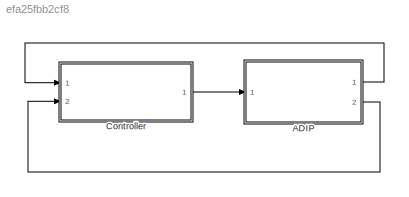
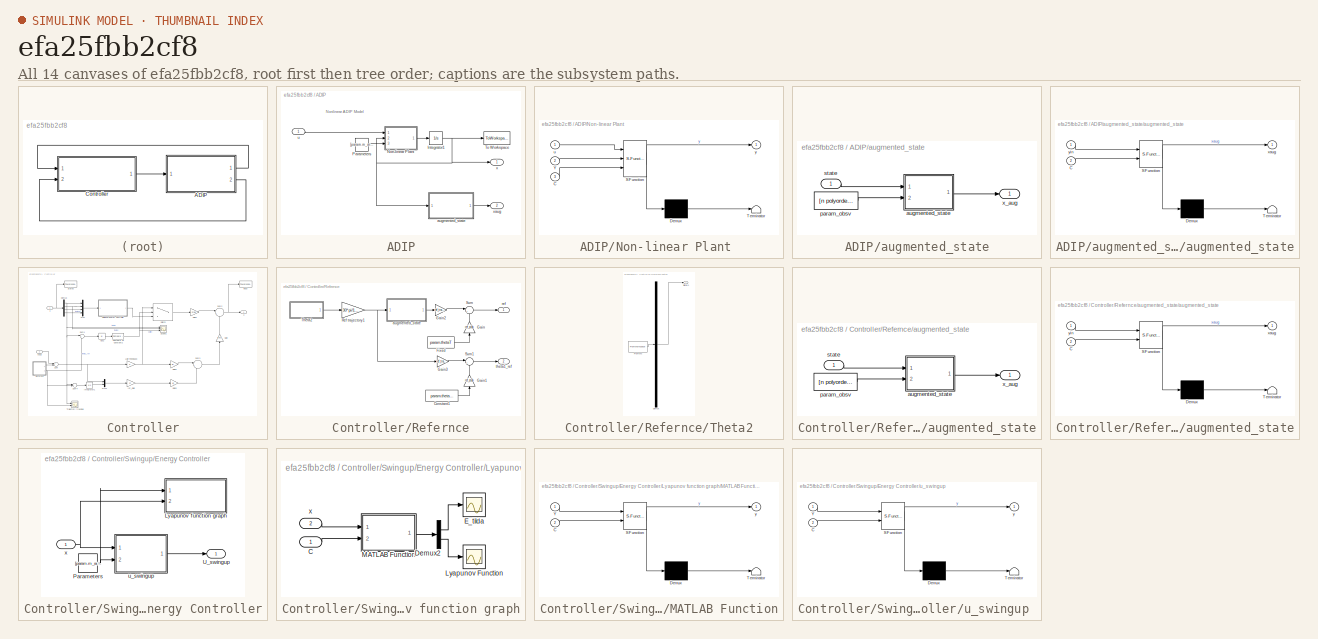
[diagram: thumbnail index - all 14 canvases of the model, root first then tree order]
MODEL slx_efa25fbb2cf8
KIND model
CONFIG AbsTol = auto
CONFIG EnableMultiTasking = off
CONFIG FixedStep = 0.005
CONFIG MaxStep = 0.2
CONFIG MinStep = auto
CONFIG RelTol = 1e-3
CONFIG SampleTimeConstraint = Unconstrained
CONFIG Solver = ode4
CONFIG SolverName = ode4
CONFIG StartTime = 0.0
CONFIG StopTime = 25
BLOCK [SubSystem] ADIP
  Ports = [1, 2]
  RequestExecContextInheritance = off
BLOCK [Integrator] ADIP/Integrator1
  InitialCondition = param.theta0
  Ports = [1, 1]
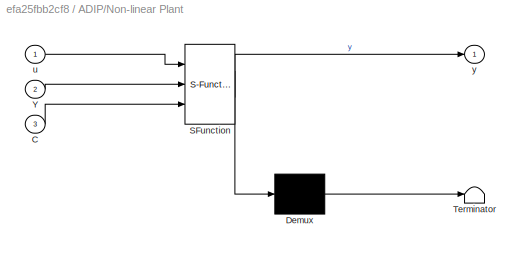
BLOCK [SubSystem] ADIP/Non-linear Plant 
  ErrorFcn = Stateflow.Translate.translate
  PermitHierarchicalResolution = ExplicitOnly
  Ports = [3, 1]
  RequestExecContextInheritance = off
  SFBlockType = MATLAB Function
  TreatAsAtomicUnit = on
BLOCK [Demux] ADIP/Non-linear Plant / Demux 
  Outputs = 1
  Ports = [1, 1]
BLOCK [S-Function] ADIP/Non-linear Plant / SFunction 
  EnableBusSupport = on
  FunctionName = sf_sfun
  PortCounts = [3 2]
  Ports = [3, 2]
  SFcnIsStateOwnerBlock = off
  SFunctionDeploymentMode = off
  Tag = Stateflow S-Function DataDriven_Sim 2
BLOCK [Terminator] ADIP/Non-linear Plant / Terminator 
BLOCK [Inport] ADIP/Non-linear Plant /C
  IconDisplay = Port number
  Port = 3
BLOCK [Inport] ADIP/Non-linear Plant /Y
  IconDisplay = Port number
  Port = 2
BLOCK [Inport] ADIP/Non-linear Plant /u
  IconDisplay = Port number
BLOCK [Outport] ADIP/Non-linear Plant /y
  IconDisplay = Port number
BLOCK [Constant] ADIP/Parameters
  Value = [param.m_arm,param.m_pend,param.m_hinge,param.l_pivot,param.l_pend,param.g,param.Jarm,param.Jpend,param.Jl,param.Jhinge, param.C_arm,param.C_pend]
BLOCK [ToWorkspace] ADIP/To Workspace
  FixptAsFi = on
  MaxDataPoints = inf
  Ports = [1]
  SampleTime = -1
  VariableName = data
BLOCK [SubSystem] ADIP/augmented_state
  Ports = [1, 1]
  RequestExecContextInheritance = off
BLOCK [SubSystem] ADIP/augmented_state/augmented_state
  ErrorFcn = Stateflow.Translate.translate
  PermitHierarchicalResolution = ExplicitOnly
  Ports = [2, 1]
  RequestExecContextInheritance = off
  SFBlockType = MATLAB Function
  TreatAsAtomicUnit = on
BLOCK [Demux] ADIP/augmented_state/augmented_state/ Demux 
  Outputs = 1
  Ports = [1, 1]
BLOCK [S-Function] ADIP/augmented_state/augmented_state/ SFunction 
  EnableBusSupport = on
  FunctionName = sf_sfun
  PortCounts = [2 2]
  Ports = [2, 2]
  SFcnIsStateOwnerBlock = off
  SFunctionDeploymentMode = off
  Tag = Stateflow S-Function DataDriven_Sim 4
BLOCK [Terminator] ADIP/augmented_state/augmented_state/ Terminator 
BLOCK [Inport] ADIP/augmented_state/augmented_state/C
  IconDisplay = Port number
  Port = 2
BLOCK [Outport] ADIP/augmented_state/augmented_state/xaug
  IconDisplay = Port number
BLOCK [Inport] ADIP/augmented_state/augmented_state/yin
  IconDisplay = Port number
BLOCK [Constant] ADIP/augmented_state/param_obsv
  Value = [n polyorder usesine polysine nObsv]
BLOCK [Inport] ADIP/augmented_state/state
  IconDisplay = Port number
BLOCK [Outport] ADIP/augmented_state/x_aug
  IconDisplay = Port number
BLOCK [Inport] ADIP/u
  IconDisplay = Port number
BLOCK [Outport] ADIP/x
  IconDisplay = Port number
BLOCK [Outport] ADIP/xaug
  IconDisplay = Port number
  Port = 2
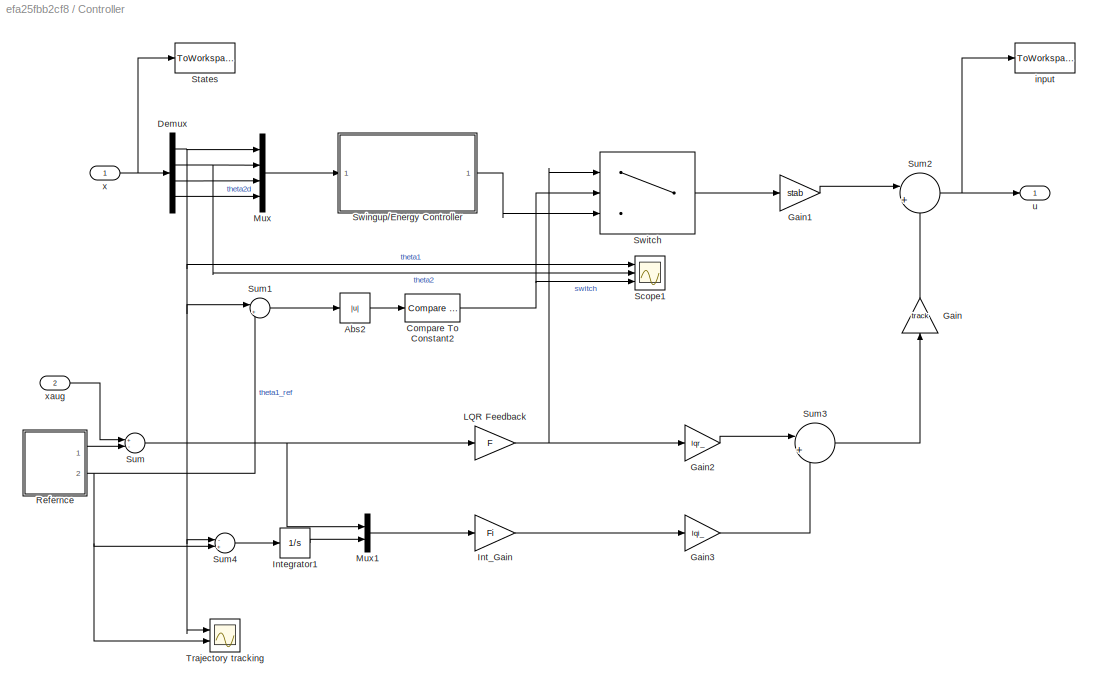
BLOCK [SubSystem] Controller
  Ports = [2, 1]
  RequestExecContextInheritance = off
BLOCK [Abs] Controller/Abs2
  SaturateOnIntegerOverflow = off
BLOCK [Reference] Controller/Compare To Constant2  REF=simulink/Logic and Bit
Operations/Compare
To Constant
  Ports = [1, 1]
  SourceBlock = simulink/Logic and Bit\nOperations/Compare\nTo Constant
  SourceProductBaseCode = SL
  SourceProductName = Simulink
  SourceType = Compare To Constant
BLOCK [Demux] Controller/Demux
  DisplayOption = bar
  Ports = [1, 4]
BLOCK [Gain] Controller/Gain
  Gain = track
  OutDataTypeStr = Inherit: Inherit via internal rule
  ParamDataTypeStr = Inherit: Inherit via internal rule
  SaturateOnIntegerOverflow = off
BLOCK [Gain] Controller/Gain1
  Gain = stab
  OutDataTypeStr = Inherit: Inherit via internal rule
  ParamDataTypeStr = Inherit: Inherit via internal rule
  SaturateOnIntegerOverflow = off
BLOCK [Gain] Controller/Gain2
  Gain = lqr_
  OutDataTypeStr = Inherit: Inherit via internal rule
  ParamDataTypeStr = Inherit: Inherit via internal rule
  SaturateOnIntegerOverflow = off
BLOCK [Gain] Controller/Gain3
  Gain = lqi_
  OutDataTypeStr = Inherit: Inherit via internal rule
  ParamDataTypeStr = Inherit: Inherit via internal rule
  SaturateOnIntegerOverflow = off
BLOCK [Gain] Controller/Int_Gain
  Gain = Fi
  Multiplication = Matrix(K*u)
  OutDataTypeStr = Inherit: Inherit via internal rule
  ParamDataTypeStr = Inherit: Inherit via internal rule
  SaturateOnIntegerOverflow = off
BLOCK [Integrator] Controller/Integrator1
  Ports = [1, 1]
BLOCK [Gain] Controller/LQR Feedback
  Gain = F
  Multiplication = Matrix(K*u)
  OutDataTypeStr = Inherit: Inherit via internal rule
  ParamDataTypeStr = Inherit: Inherit via internal rule
  SaturateOnIntegerOverflow = off
BLOCK [Mux] Controller/Mux
  DisplayOption = bar
  Ports = [4, 1]
BLOCK [Mux] Controller/Mux1
  DisplayOption = bar
  Inputs = 2
  Ports = [2, 1]
BLOCK [SubSystem] Controller/Refernce
  Ports = [0, 2]
  RequestExecContextInheritance = off
BLOCK [Constant] Controller/Refernce/Constant1
  Value = param.thetaT(1)
BLOCK [Constant] Controller/Refernce/Fixed
  Value = param.thetaT
BLOCK [Gain] Controller/Refernce/Gain
  Gain = ref_stab
  OutDataTypeStr = Inherit: Inherit via internal rule
  ParamDataTypeStr = Inherit: Inherit via internal rule
  SaturateOnIntegerOverflow = off
BLOCK [Gain] Controller/Refernce/Gain1
  Gain = ref_stab
  OutDataTypeStr = Inherit: Inherit via internal rule
  ParamDataTypeStr = Inherit: Inherit via internal rule
  SaturateOnIntegerOverflow = off
BLOCK [Gain] Controller/Refernce/Gain2
  Gain = ref_track
  OutDataTypeStr = Inherit: Inherit via internal rule
  ParamDataTypeStr = Inherit: Inherit via internal rule
  SaturateOnIntegerOverflow = off
BLOCK [Gain] Controller/Refernce/Gain3
  Gain = ref_track
  OutDataTypeStr = Inherit: Inherit via internal rule
  ParamDataTypeStr = Inherit: Inherit via internal rule
  SaturateOnIntegerOverflow = off
BLOCK [Gain] Controller/Refernce/Ref trajectory1
  Gain = 30*pi/180
  OutDataTypeStr = Inherit: Inherit via internal rule
  ParamDataTypeStr = Inherit: Inherit via internal rule
  SaturateOnIntegerOverflow = off
BLOCK [Sum] Controller/Refernce/Sum
  IconShape = round
  InputSameDT = off
  Inputs = |++
  OutDataTypeStr = Inherit: Inherit via internal rule
  Ports = [2, 1]
  SaturateOnIntegerOverflow = off
BLOCK [Sum] Controller/Refernce/Sum1
  IconShape = round
  InputSameDT = off
  Inputs = |++
  OutDataTypeStr = Inherit: Inherit via internal rule
  Ports = [2, 1]
  SaturateOnIntegerOverflow = off
BLOCK [SubSystem] Controller/Refernce/Theta2
  ClipboardFcn = sigbuilder_block('clipboard');
  CloseFcn = sigbuilder_block('close');
  ContinueFcn = sigbuilder_block('continue');
  CopyFcn = sigbuilder_block('copy');
  DeleteFcn = sigbuilder_block('delete');
  LoadFcn = sigbuilder_block('load');
  MaskHideContents = on
  ModelCloseFcn = sigbuilder_block('modelClose');
  NameChangeFcn = sigbuilder_block('namechange');
  OpenFcn = sigbuilder_block('open',[5.4 30 1141.2 522.6 ]);
  PauseFcn = sigbuilder_block('pause');
  Ports = [0, 1]
  PreSaveFcn = sigbuilder_block('preSave');
  RequestExecContextInheritance = off
  StartFcn = sigbuilder_block('start');
  StopFcn = sigbuilder_block('stop');
  Tag = STV Subsys
BLOCK [Demux] Controller/Refernce/Theta2/Demux
  Outputs = 1
  Ports = [1, 1]
  Tag = STV Demux
BLOCK [FromWorkspace] Controller/Refernce/Theta2/FromWs
  SampleTime = 0
  Tag = STV FromWs
  VariableName = tuvar
  ZeroCross = on
BLOCK [Outport] Controller/Refernce/Theta2/Signal 1
  IconDisplay = Port number
  Tag = STV Outport
BLOCK [SubSystem] Controller/Refernce/augmented_state
  Ports = [1, 1]
  RequestExecContextInheritance = off
BLOCK [SubSystem] Controller/Refernce/augmented_state/augmented_state
  ErrorFcn = Stateflow.Translate.translate
  PermitHierarchicalResolution = ExplicitOnly
  Ports = [2, 1]
  RequestExecContextInheritance = off
  SFBlockType = MATLAB Function
  TreatAsAtomicUnit = on
BLOCK [Demux] Controller/Refernce/augmented_state/augmented_state/ Demux 
  Outputs = 1
  Ports = [1, 1]
BLOCK [S-Function] Controller/Refernce/augmented_state/augmented_state/ SFunction 
  EnableBusSupport = on
  FunctionName = sf_sfun
  PortCounts = [2 2]
  Ports = [2, 2]
  SFcnIsStateOwnerBlock = off
  SFunctionDeploymentMode = off
  Tag = Stateflow S-Function DataDriven_Sim 5
BLOCK [Terminator] Controller/Refernce/augmented_state/augmented_state/ Terminator 
BLOCK [Inport] Controller/Refernce/augmented_state/augmented_state/C
  IconDisplay = Port number
  Port = 2
BLOCK [Outport] Controller/Refernce/augmented_state/augmented_state/xaug
  IconDisplay = Port number
BLOCK [Inport] Controller/Refernce/augmented_state/augmented_state/yin
  IconDisplay = Port number
BLOCK [Constant] Controller/Refernce/augmented_state/param_obsv
  Value = [n polyorder usesine polysine nObsv]
BLOCK [Inport] Controller/Refernce/augmented_state/state
  IconDisplay = Port number
BLOCK [Outport] Controller/Refernce/augmented_state/x_aug
  IconDisplay = Port number
BLOCK [Outport] Controller/Refernce/ref
  IconDisplay = Port number
BLOCK [Outport] Controller/Refernce/theta1_ref
  IconDisplay = Port number
  Port = 2
BLOCK [Scope] Controller/Scope1
  Floating = off
  NumInputPorts = 3
  Ports = [3]
  ScopeSpecificationString = Simulink.scopes.TimeScopeBlockCfg('CurrentConfiguration', extmgr.ConfigurationSet(extmgr.Configuration('Core','General UI',true,'FigureColor',[1 1 1]),extmgr.Configuration('Core','Source UI',true),extmgr.Configuration('Sources','WiredSimulink',true,'DataLoggingVariableName','ScopeData1'),extmgr.Configuration('Visuals','Time Domain',true,'SerializedDisplays',{struct('MinYLimReal','-0.41257','MaxYLi...<+1939ch>
BLOCK [ToWorkspace] Controller/States
  FixptAsFi = on
  MaxDataPoints = inf
  Ports = [1]
  SampleTime = -1
  VariableName = state
BLOCK [Sum] Controller/Sum
  InputSameDT = off
  Inputs = +-
  OutDataTypeStr = Inherit: Inherit via internal rule
  Ports = [2, 1]
  SaturateOnIntegerOverflow = off
BLOCK [Sum] Controller/Sum1
  IconShape = round
  InputSameDT = off
  Inputs = |+-
  OutDataTypeStr = Inherit: Inherit via internal rule
  Ports = [2, 1]
  SaturateOnIntegerOverflow = off
BLOCK [Sum] Controller/Sum2
  IconShape = round
  InputSameDT = off
  Inputs = |++
  OutDataTypeStr = Inherit: Inherit via internal rule
  Ports = [2, 1]
  SaturateOnIntegerOverflow = off
BLOCK [Sum] Controller/Sum3
  IconShape = round
  InputSameDT = off
  Inputs = |++
  OutDataTypeStr = Inherit: Inherit via internal rule
  Ports = [2, 1]
  SaturateOnIntegerOverflow = off
BLOCK [Sum] Controller/Sum4
  InputSameDT = off
  Inputs = -+
  OutDataTypeStr = Inherit: Inherit via internal rule
  Ports = [2, 1]
  SaturateOnIntegerOverflow = off
BLOCK [SubSystem] Controller/Swingup//Energy Controller
  Ports = [1, 1]
  RequestExecContextInheritance = off
BLOCK [SubSystem] Controller/Swingup//Energy Controller/Lyapunov function graph
  Ports = [2]
  RequestExecContextInheritance = off
BLOCK [Inport] Controller/Swingup//Energy Controller/Lyapunov function graph/C
  IconDisplay = Port number
BLOCK [Demux] Controller/Swingup//Energy Controller/Lyapunov function graph/Demux2
  DisplayOption = bar
  Outputs = 2
  Ports = [1, 2]
BLOCK [Scope] Controller/Swingup//Energy Controller/Lyapunov function graph/E_tilda
  Floating = off
  NumInputPorts = 1
  Ports = [1]
  ScopeSpecificationString = Simulink.scopes.TimeScopeBlockCfg('CurrentConfiguration', extmgr.ConfigurationSet(extmgr.Configuration('Core','General UI',true),extmgr.Configuration('Core','Source UI',true),extmgr.Configuration('Sources','WiredSimulink',true,'DataLoggingVariableName','ScopeData1'),extmgr.Configuration('Visuals','Time Domain',true,'SerializedDisplays',{struct('MinYLimReal','-0.73855','MaxYLimReal','0.08206','YLab...<+1432ch>
BLOCK [Scope] Controller/Swingup//Energy Controller/Lyapunov function graph/Lyapunov Function
  Floating = off
  NumInputPorts = 1
  Ports = [1]
  ScopeSpecificationString = Simulink.scopes.TimeScopeBlockCfg('CurrentConfiguration', extmgr.ConfigurationSet(extmgr.Configuration('Core','General UI',true),extmgr.Configuration('Core','Source UI',true),extmgr.Configuration('Sources','WiredSimulink',true,'DataLoggingVariableName','ScopeData1'),extmgr.Configuration('Visuals','Time Domain',true,'SerializedDisplays',{struct('MinYLimReal','-2.82821','MaxYLimReal','25.45391','YLa...<+1436ch>
BLOCK [SubSystem] Controller/Swingup//Energy Controller/Lyapunov function graph/MATLAB Function
  ErrorFcn = Stateflow.Translate.translate
  PermitHierarchicalResolution = ExplicitOnly
  Ports = [2, 1]
  RequestExecContextInheritance = off
  SFBlockType = MATLAB Function
  TreatAsAtomicUnit = on
BLOCK [Demux] Controller/Swingup//Energy Controller/Lyapunov function graph/MATLAB Function/ Demux 
  Outputs = 1
  Ports = [1, 1]
BLOCK [S-Function] Controller/Swingup//Energy Controller/Lyapunov function graph/MATLAB Function/ SFunction 
  EnableBusSupport = on
  FunctionName = sf_sfun
  PortCounts = [2 2]
  Ports = [2, 2]
  SFcnIsStateOwnerBlock = off
  SFunctionDeploymentMode = off
  Tag = Stateflow S-Function DataDriven_Sim 6
BLOCK [Terminator] Controller/Swingup//Energy Controller/Lyapunov function graph/MATLAB Function/ Terminator 
BLOCK [Inport] Controller/Swingup//Energy Controller/Lyapunov function graph/MATLAB Function/C
  IconDisplay = Port number
  Port = 2
BLOCK [Inport] Controller/Swingup//Energy Controller/Lyapunov function graph/MATLAB Function/Y
  IconDisplay = Port number
BLOCK [Outport] Controller/Swingup//Energy Controller/Lyapunov function graph/MATLAB Function/y
  IconDisplay = Port number
BLOCK [Inport] Controller/Swingup//Energy Controller/Lyapunov function graph/x
  IconDisplay = Port number
  Port = 2
BLOCK [Constant] Controller/Swingup//Energy Controller/Parameters
  Value = [param.m_arm,param.m_pend,param.m_hinge,param.l_pivot,param.l_pend,param.g,param.Jarm,param.Jpend,param.Jl,param.Jhinge, param.C_arm,param.C_pend,param.Kp,param.Kd,param.Ke]
BLOCK [Outport] Controller/Swingup//Energy Controller/U_swingup
  IconDisplay = Port number
BLOCK [SubSystem] Controller/Swingup//Energy Controller/u_swingup 
  ErrorFcn = Stateflow.Translate.translate
  PermitHierarchicalResolution = ExplicitOnly
  Ports = [2, 1]
  RequestExecContextInheritance = off
  SFBlockType = MATLAB Function
  TreatAsAtomicUnit = on
BLOCK [Demux] Controller/Swingup//Energy Controller/u_swingup / Demux 
  Outputs = 1
  Ports = [1, 1]
BLOCK [S-Function] Controller/Swingup//Energy Controller/u_swingup / SFunction 
  EnableBusSupport = on
  FunctionName = sf_sfun
  PortCounts = [2 2]
  Ports = [2, 2]
  SFcnIsStateOwnerBlock = off
  SFunctionDeploymentMode = off
  Tag = Stateflow S-Function DataDriven_Sim 7
BLOCK [Terminator] Controller/Swingup//Energy Controller/u_swingup / Terminator 
BLOCK [Inport] Controller/Swingup//Energy Controller/u_swingup /C
  IconDisplay = Port number
  Port = 2
BLOCK [Inport] Controller/Swingup//Energy Controller/u_swingup /Y
  IconDisplay = Port number
BLOCK [Outport] Controller/Swingup//Energy Controller/u_swingup /y
  IconDisplay = Port number
BLOCK [Inport] Controller/Swingup//Energy Controller/x
  IconDisplay = Port number
BLOCK [Switch] Controller/Switch
  Criteria = u2 > Threshold
  InputSameDT = off
  SaturateOnIntegerOverflow = off
  Threshold = 0.5
BLOCK [Scope] Controller/Trajectory tracking
  Floating = off
  NumInputPorts = 2
  Ports = [2]
  ScopeSpecificationString = Simulink.scopes.TimeScopeBlockCfg('CurrentConfiguration', extmgr.ConfigurationSet(extmgr.Configuration('Core','General UI',true,'FigureColor',[1 1 1]),extmgr.Configuration('Core','Source UI',true),extmgr.Configuration('Sources','WiredSimulink',true,'DataLoggingVariableName','ScopeData2'),extmgr.Configuration('Visuals','Time Domain',true,'SerializedDisplays',{struct('MinYLimReal','-0.6545','MaxYLim...<+1777ch>
BLOCK [ToWorkspace] Controller/input
  FixptAsFi = on
  MaxDataPoints = inf
  Ports = [1]
  SampleTime = -1
  VariableName = input
BLOCK [Outport] Controller/u
  IconDisplay = Port number
BLOCK [Inport] Controller/x
  IconDisplay = Port number
BLOCK [Inport] Controller/xaug
  IconDisplay = Port number
  Port = 2
ANNOTATION ADIP: Nonlinear ADIP Model
NET ADIP/Integrator1:1 -> ADIP/Non-linear Plant :2, ADIP/To Workspace:1, ADIP/augmented_state:1, ADIP/x:1
LINE ADIP/Non-linear Plant :1 -> ADIP/Integrator1:1
LINE ADIP/Parameters:1 -> ADIP/Non-linear Plant :3
LINE ADIP/augmented_state/augmented_state:1 -> ADIP/augmented_state/x_aug:1
LINE ADIP/augmented_state/param_obsv:1 -> ADIP/augmented_state/augmented_state:2
LINE ADIP/augmented_state/state:1 -> ADIP/augmented_state/augmented_state:1
LINE ADIP/augmented_state:1 -> ADIP/xaug:1
LINE ADIP/u:1 -> ADIP/Non-linear Plant :1
LINE ADIP:1 -> Controller:1
LINE ADIP:2 -> Controller:2
LINE Controller/Abs2:1 -> Controller/Compare To Constant2:1
NET Controller/Compare To Constant2:1 -> Controller/Scope1:3, Controller/Switch:2
NET Controller/Demux:1 -> Controller/Mux:1, Controller/Scope1:1, Controller/Sum1:1, Controller/Sum4:1, Controller/Trajectory tracking:1
NET Controller/Demux:2 -> Controller/Mux:2, Controller/Scope1:2
LINE Controller/Demux:3 -> Controller/Mux:3
LINE Controller/Demux:4 -> Controller/Mux:4
LINE Controller/Gain1:1 -> Controller/Sum2:1
LINE Controller/Gain2:1 -> Controller/Sum3:1
LINE Controller/Gain3:1 -> Controller/Sum3:2
LINE Controller/Gain:1 -> Controller/Sum2:2
LINE Controller/Int_Gain:1 -> Controller/Gain3:1
LINE Controller/Integrator1:1 -> Controller/Mux1:2
NET Controller/LQR Feedback:1 -> Controller/Gain2:1, Controller/Switch:1
LINE Controller/Mux1:1 -> Controller/Int_Gain:1
LINE Controller/Mux:1 -> Controller/Swingup//Energy Controller:1
LINE Controller/Refernce/Constant1:1 -> Controller/Refernce/Gain1:1
LINE Controller/Refernce/Fixed:1 -> Controller/Refernce/Gain:1
LINE Controller/Refernce/Gain1:1 -> Controller/Refernce/Sum1:2
LINE Controller/Refernce/Gain2:1 -> Controller/Refernce/Sum:1
LINE Controller/Refernce/Gain3:1 -> Controller/Refernce/Sum1:1
LINE Controller/Refernce/Gain:1 -> Controller/Refernce/Sum:2
NET Controller/Refernce/Ref trajectory1:1 -> Controller/Refernce/Gain3:1, Controller/Refernce/augmented_state:1
LINE Controller/Refernce/Sum1:1 -> Controller/Refernce/theta1_ref:1
LINE Controller/Refernce/Sum:1 -> Controller/Refernce/ref:1
LINE Controller/Refernce/Theta2:1 -> Controller/Refernce/Ref trajectory1:1
LINE Controller/Refernce/augmented_state/augmented_state:1 -> Controller/Refernce/augmented_state/x_aug:1
LINE Controller/Refernce/augmented_state/param_obsv:1 -> Controller/Refernce/augmented_state/augmented_state:2
LINE Controller/Refernce/augmented_state/state:1 -> Controller/Refernce/augmented_state/augmented_state:1
LINE Controller/Refernce/augmented_state:1 -> Controller/Refernce/Gain2:1
LINE Controller/Refernce:1 -> Controller/Sum:2
NET Controller/Refernce:2 -> Controller/Sum1:2, Controller/Sum4:2, Controller/Trajectory tracking:2
LINE Controller/Sum1:1 -> Controller/Abs2:1
NET Controller/Sum2:1 -> Controller/input:1, Controller/u:1
LINE Controller/Sum3:1 -> Controller/Gain:1
LINE Controller/Sum4:1 -> Controller/Integrator1:1
NET Controller/Sum:1 -> Controller/LQR Feedback:1, Controller/Mux1:1
LINE Controller/Swingup//Energy Controller/Lyapunov function graph/C:1 -> Controller/Swingup//Energy Controller/Lyapunov function graph/MATLAB Function:2
LINE Controller/Swingup//Energy Controller/Lyapunov function graph/Demux2:1 -> Controller/Swingup//Energy Controller/Lyapunov function graph/E_tilda:1
LINE Controller/Swingup//Energy Controller/Lyapunov function graph/Demux2:2 -> Controller/Swingup//Energy Controller/Lyapunov function graph/Lyapunov Function:1
LINE Controller/Swingup//Energy Controller/Lyapunov function graph/MATLAB Function:1 -> Controller/Swingup//Energy Controller/Lyapunov function graph/Demux2:1
LINE Controller/Swingup//Energy Controller/Lyapunov function graph/x:1 -> Controller/Swingup//Energy Controller/Lyapunov function graph/MATLAB Function:1
NET Controller/Swingup//Energy Controller/Parameters:1 -> Controller/Swingup//Energy Controller/Lyapunov function graph:1, Controller/Swingup//Energy Controller/u_swingup :2
LINE Controller/Swingup//Energy Controller/u_swingup :1 -> Controller/Swingup//Energy Controller/U_swingup:1
NET Controller/Swingup//Energy Controller/x:1 -> Controller/Swingup//Energy Controller/Lyapunov function graph:2, Controller/Swingup//Energy Controller/u_swingup :1
LINE Controller/Swingup//Energy Controller:1 -> Controller/Switch:3
LINE Controller/Switch:1 -> Controller/Gain1:1
NET Controller/x:1 -> Controller/Demux:1, Controller/States:1
LINE Controller/xaug:1 -> Controller/Sum:1
LINE Controller:1 -> ADIP:1
note: NET lines group one-source signal fan-out (src -> all destinations, sorted); 1:1 wires keep LINE
CHART ADIP/Non-linear 
Plant
 states=1 transitions=1
  STATE_LABEL 'eML_blk_kernel()'
  STATE_LABEL 'SCRIPT:\nfunction y = fcn(u,Y,C)\nm1=C(1); % Mass of arm\nm2=C(2); % Mass of pendulum\nmh = C(3); % Mass of Hinge\nl1  = C(4); % Length of arm\nl2 = C(5); % Length of pendulum\ng_ = C(6);\nJ_arm = C(7);\nJ_pend = C(8);\nJ_motor = C(9);\nJ_sensor = C(10);\nfv1 = C(11);\nfv2 = C(12);\n\ny1 = Y(1);  % actual theta1          \ny2 = Y(2);  % actual theta2\ny3 = Y(3);  % actual theta1d\ny4 = Y(4);  % actual theta2d\n\ndy1 ...<+1551ch>'
CHART ADIP/augmented_state/augmented_state states=1 transitions=1
  STATE_LABEL 'eML_blk_kernel()'
  STATE_LABEL "SCRIPT:\nfunction xaug = fcn(yin,C)\n\n% % Manually entering the observables.\n% y = [yin ;yin(1).^2 ;yin(1)*yin(2); yin(1)*yin(3); yin(1)*yin(4);yin(2).^2;...\n%     yin(2)*yin(3); yin(2)*yin(4); yin(3).^2; yin(3)*yin(4); yin(4).^2]; \n\nyin = yin'; nVars = C(1); polyorder = C(2); usesine = C(3); polysine = C(4);\n% nObsv = C(5);\n\ny = zeros(1,34);\nind = 1;\n\n% poly order 1\nfor i=1:nVars\n    y(:,ind) = yin...<+2154ch>"
CHART Controller/Refernce/augmented_state/augmented_state states=1 transitions=1
  STATE_LABEL 'eML_blk_kernel()'
  STATE_LABEL "SCRIPT:\nfunction xaug = fcn(yin,C)\n\n% % Manually entering the observables.\n% y = [yin ;yin(1).^2 ;yin(1)*yin(2); yin(1)*yin(3); yin(1)*yin(4);yin(2).^2;...\n%     yin(2)*yin(3); yin(2)*yin(4); yin(3).^2; yin(3)*yin(4); yin(4).^2]; \n\nyin = [yin ;0 ;0 ;0]'; \nnVars = C(1); polyorder = C(2); usesine = C(3); polysine = C(4);\n% nObsv = C(5);\n\ny = zeros(1,34);\nind = 1;\n\n% poly order 1\nfor i=1:nVars\n    y(...<+2166ch>"
CHART Controller/Swingup//Energy Controller/Lyapunov function graph/MATLAB Function states=1 transitions=1
  STATE_LABEL 'eML_blk_kernel()'
  STATE_LABEL 'SCRIPT:\nfunction y = fcn(Y,C)\n\nm1=C(1); % Mass of arm\nm2=C(2); % Mass of pendulum\nmh = C(3); % Mass of Hinge\nl1  = C(4); % Length of arm\nl2 = C(5); % Length of pendulum\ng_ = C(6);\nJ_arm = C(7);\nJ_pend = C(8);\nJ_motor = C(9);\nJ_sensor = C(10);\nfv1 = C(11);\nfv2 = C(12);\n\ny1 = Y(1);  % actual theta1          \ny2 = Y(2);  % actual theta2\ny3 = Y(3);  % actual theta1d\ny4 = Y(4);  % actual theta2d\n\nKp = ...<+315ch>'
CHART Controller/Swingup//Energy Controller/u_swingup
 states=1 transitions=1
  STATE_LABEL 'eML_blk_kernel()'
  STATE_LABEL 'SCRIPT:\nfunction y = fcn(Y, C)\nm1=C(1); % Mass of arm\nm2=C(2); % Mass of pendulum\nmh = C(3); % Mass of Hinge\nl1  = C(4); % Length of arm\nl2 = C(5); % Length of pendulum\ng_ = C(6);\nJ_arm = C(7);\nJ_pend = C(8);\nJ_motor = C(9);\nJ_sensor = C(10);\nfv1 = C(11);\nfv2 = C(12);\n\ny1 = Y(1);  % actual theta1          \ny2 = Y(2);  % actual theta2\ny3 = Y(3);  % actual theta1d\ny4 = Y(4);  % actual theta2d\n\nKp = ...<+1184ch>'
